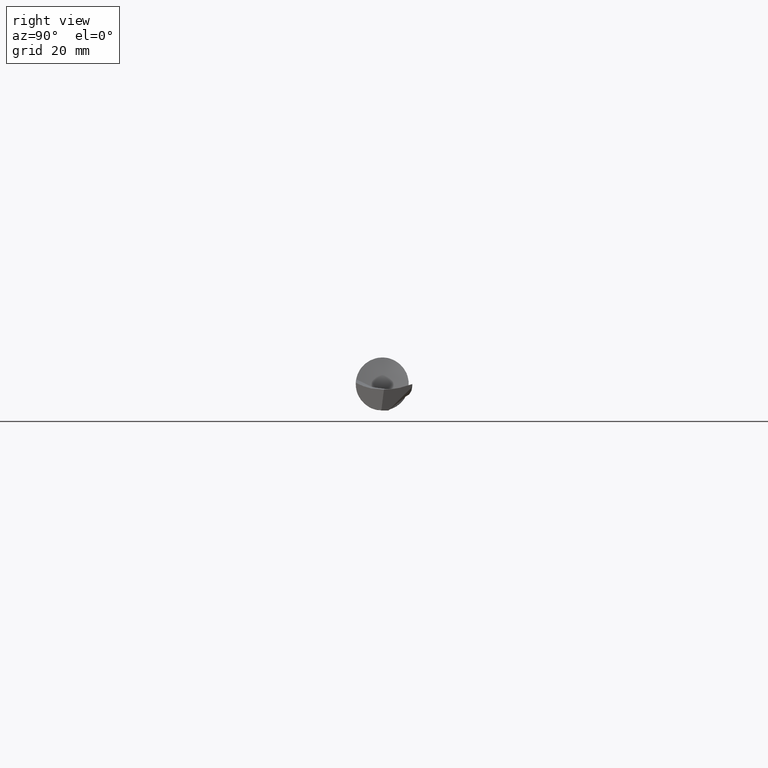
[diagram: clean part render]
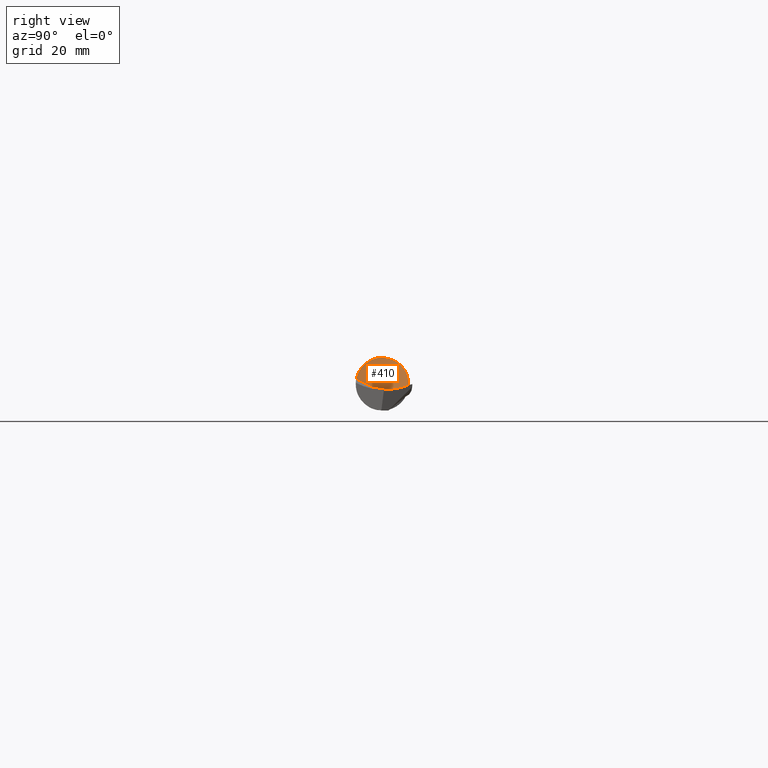
[diagram: same view with one face highlighted and labeled with its STEP entity id]
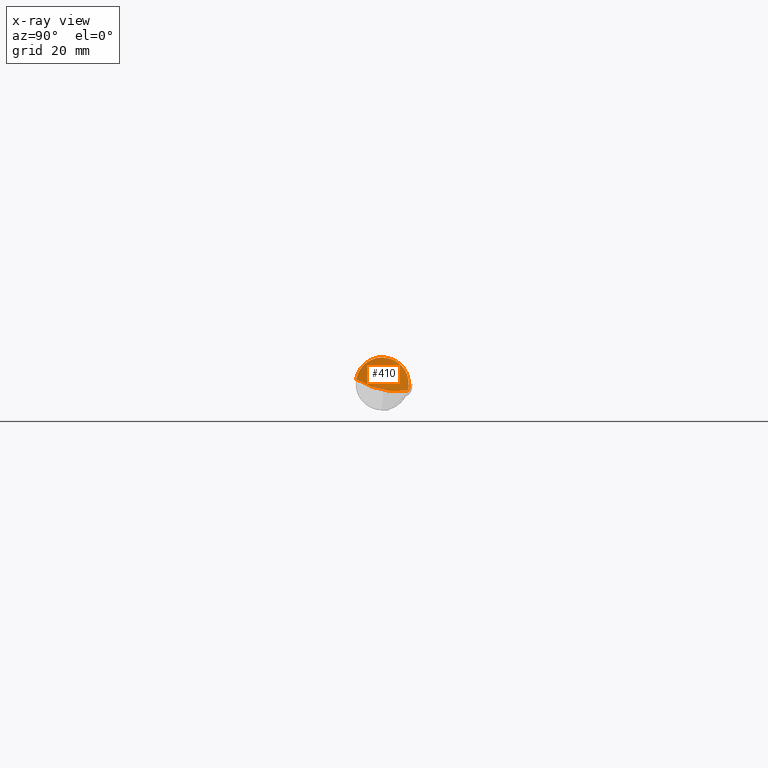
[diagram: x-ray of the same camera — body ghosted, the highlighted face saturated]
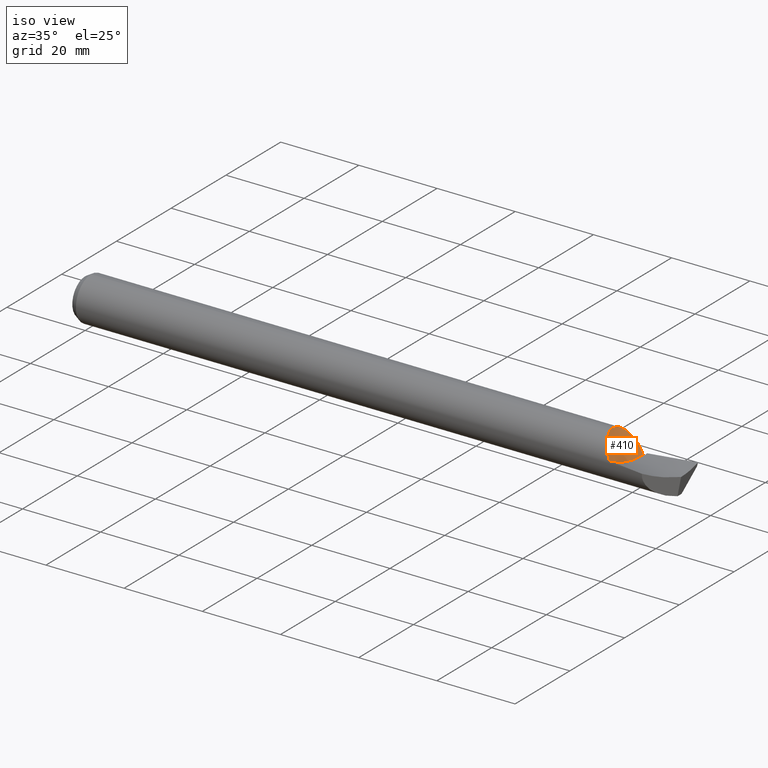
[diagram: same view with one face highlighted and labeled with its STEP entity id]
A machine part, right view. The second image highlights one B-rep face of the part: STEP entity #410.
The next image is the same camera in x-ray: the body ghosted, the highlighted face saturated — about 0% of this face is hidden behind the body in this view.
A second angle (iso view) of the same face is appended — the face is thin or edge-on in the first view.
In plain terms, the highlighted face is a freeform B-spline surface patch.
Its self-contained STEP definition (entity closure, byte-faithful):
#5 = CARTESIAN_POINT ( 'NONE',  ( 5.428289023255820744, -0.2151305318689210322, 0.03907271116514884901 ) ) ;
#6 = CARTESIAN_POINT ( 'NONE',  ( 5.393751563188459386, 0.2097834464265109777, 0.06168193126618237015 ) ) ;
#7 = VERTEX_POINT ( 'NONE', #640 ) ;
#9 = CARTESIAN_POINT ( 'NONE',  ( 5.301726246469367965, -1.097537071317447814E-06, 0.2186592195482874035 ) ) ;
#15 = CARTESIAN_POINT ( 'NONE',  ( 5.301726246469367965, -1.097537071317447814E-06, 0.2186592195482874035 ) ) ;
#19 = FACE_OUTER_BOUND ( 'NONE', #103, .T. ) ;
#26 = CARTESIAN_POINT ( 'NONE',  ( 5.299999999999994493, 0.1070336980627112355, 0.1859076371132536154 ) ) ;
#29 = EDGE_CURVE ( 'NONE', #326, #562, #552, .T. ) ;
#32 = CARTESIAN_POINT ( 'NONE',  ( 5.300000000000003375, -0.004090850421422781262, 0.2091195024837151639 ) ) ;
#39 = CARTESIAN_POINT ( 'NONE',  ( 5.323851703196349483, -0.07692295761513294472, 0.2046733460412991090 ) ) ;
#40 = CARTESIAN_POINT ( 'NONE',  ( 5.391960524979544367, 0.2090039576888267914, 0.06425115845135193071 ) ) ;
#41 = CARTESIAN_POINT ( 'NONE',  ( 5.354642086951858282, -0.1405036324967387229, 0.1675373154708120482 ) ) ;
#44 = CARTESIAN_POINT ( 'NONE',  ( 5.395925378028884722, 0.2106676904138148898, 0.05855338454461178621 ) ) ;
#49 = CARTESIAN_POINT ( 'NONE',  ( 5.373045229115887444, 0.1987798122955278524, 0.09107372125574716981 ) ) ;
#51 = CARTESIAN_POINT ( 'NONE',  ( 5.333018530376169686, -0.09912489433541260553, 0.1953142997923010271 ) ) ;
#53 = CARTESIAN_POINT ( 'NONE',  ( 5.327903301790693824, 0.1544032420682446283, 0.1548144573598769780 ) ) ;
#59 = CARTESIAN_POINT ( 'NONE',  ( 5.410943118938225993, 0.2156394942511996315, 0.03669571857654661123 ) ) ;
#65 = CARTESIAN_POINT ( 'NONE',  ( 5.301571563392669439, 0.0009007926053264448708, 0.2186486067439287750 ) ) ;
#70 = CARTESIAN_POINT ( 'NONE',  ( 5.300000000000000711, 0.01069301138062639031, 0.2183883742501275815 ) ) ;
#79 = CARTESIAN_POINT ( 'NONE',  ( 5.300000000000000711, 0.05917864143259982113, 0.2052125541240582551 ) ) ;
#95 = CARTESIAN_POINT ( 'NONE',  ( 5.317997827412834333, -0.06112191080452025749, 0.2099624141757666929 ) ) ;
#97 = CARTESIAN_POINT ( 'NONE',  ( 5.422981224190761118, 0.2178384048208436286, 0.01882239950287517907 ) ) ;
#101 = CARTESIAN_POINT ( 'NONE',  ( 5.423132256118122108, 0.2178578002910109834, 0.01859591843064410319 ) ) ;
#103 = EDGE_LOOP ( 'NONE', ( #199, #518, #691, #175, #338 ) ) ;
#112 = CARTESIAN_POINT ( 'NONE',  ( 5.339809942963882783, 0.1702993353926174069, 0.1377509704733041185 ) ) ;
#116 = CARTESIAN_POINT ( 'NONE',  ( 5.363905207600467406, 0.1924089063709986391, 0.1039229917590410029 ) ) ;
#120 = CARTESIAN_POINT ( 'NONE',  ( 5.301184492781922053, 0.003146918431384278843, 0.2186305735167796416 ) ) ;
#141 = CARTESIAN_POINT ( 'NONE',  ( 5.300000000000000711, -0.09244828656994326377, 0.2677915732775291713 ) ) ;
#145 = CARTESIAN_POINT ( 'NONE',  ( 5.367185262199287266, -0.1604174294540079426, 0.1490964670851400165 ) ) ;
#150 = CARTESIAN_POINT ( 'NONE',  ( 5.372283168852959534, 0.1982860555661837831, 0.09214581790529133287 ) ) ;
#153 = CARTESIAN_POINT ( 'NONE',  ( 5.353799381708173044, -0.1390748737465828111, 0.1687191142472262428 ) ) ;
#155 = CARTESIAN_POINT ( 'NONE',  ( 5.376457864700658007, 0.2009676489907449570, 0.08627223400866519676 ) ) ;
#159 = CARTESIAN_POINT ( 'NONE',  ( 5.453529265273479254, 0.02632038727175991036, -0.05321014791944884276 ) ) ;
#161 = CARTESIAN_POINT ( 'NONE',  ( 5.315200195965978480, 0.1325952822649145157, 0.1740109497427283214 ) ) ;
#163 = CARTESIAN_POINT ( 'NONE',  ( 5.314552961290850419, -0.05098192065812419405, 0.2127387826740966270 ) ) ;
#169 = CARTESIAN_POINT ( 'NONE',  ( 5.420983759668443369, 0.2175622048859018609, 0.02180692788309914962 ) ) ;
#175 = ORIENTED_EDGE ( 'NONE', *, *, #29, .F. ) ;
#199 = ORIENTED_EDGE ( 'NONE', *, *, #557, .F. ) ;
#208 = CARTESIAN_POINT ( 'NONE',  ( 5.327339098440490694, 0.1535724871066054542, 0.1556396391440466598 ) ) ;
#214 = CARTESIAN_POINT ( 'NONE',  ( 5.373198069281534650, 0.1988781926060893268, 0.09085868690086847110 ) ) ;
#216 = CARTESIAN_POINT ( 'NONE',  ( 5.467775382269694617, 0.1747646242851793319, -0.06124491988081876004 ) ) ;
#218 = CARTESIAN_POINT ( 'NONE',  ( 5.423203999389651031, 0.2178669501258466701, 0.01848827045659682394 ) ) ;
#220 = CARTESIAN_POINT ( 'NONE',  ( 5.383913653070428573, -0.1816157460054630135, 0.1217936843185418311 ) ) ;
#222 = CARTESIAN_POINT ( 'NONE',  ( 5.397033353014940360, 0.2111023645173870367, 0.05695621974847463881 ) ) ;
#224 = CARTESIAN_POINT ( 'NONE',  ( 5.432181049313783205, -0.1841263147728427196, 0.01977626706365450890 ) ) ;
#225 = B_SPLINE_CURVE_WITH_KNOTS ( 'NONE', 3,
 ( #15, #575, #65, #232, #120, #349, #288, #70 ),
 .UNSPECIFIED., .F., .F.,
 ( 4, 2, 1, 1, 4 ),
 ( 0.9685658636575108504, 0.9724951307003227852, 0.9764243977431347199, 0.9842829318287569240, 1.000000000000000000 ),
 .UNSPECIFIED. ) ;
#227 = CARTESIAN_POINT ( 'NONE',  ( 5.417222582560270894, 0.2169486243322618635, 0.02740261093453771543 ) ) ;
#232 = CARTESIAN_POINT ( 'NONE',  ( 5.301415447608443188, 0.001800015976620992272, 0.2186430529444348403 ) ) ;
#238 = CARTESIAN_POINT ( 'NONE',  ( 5.465102704248059773, 0.2138155167977597859, -0.04696383832082493687 ) ) ;
#260 = CARTESIAN_POINT ( 'NONE',  ( 5.464212849416286488, 0.1377136875928074988, -0.06237143978746857026 ) ) ;
#262 = CARTESIAN_POINT ( 'NONE',  ( 5.397994206653936367, 0.2114706548956107601, 0.05556976712593802298 ) ) ;
#266 = CARTESIAN_POINT ( 'NONE',  ( 5.328253007059424284, -0.08813334624505253512, 0.2004187933001320143 ) ) ;
#268 = CARTESIAN_POINT ( 'NONE',  ( 5.397833416469516976, 0.2114095307937702561, 0.05580185651004301167 ) ) ;
#274 = CARTESIAN_POINT ( 'NONE',  ( 5.355166375661937650, 0.1853570673493258048, 0.1161901871610538928 ) ) ;
#276 = CARTESIAN_POINT ( 'NONE',  ( 5.348460418300624575, -0.1297214670295155914, 0.1760449541647363114 ) ) ;
#282 = CARTESIAN_POINT ( 'NONE',  ( 5.471346566983472215, 0.2110442653468279917, -0.05716765312847500030 ) ) ;
#283 = CARTESIAN_POINT ( 'NONE',  ( 5.312534214554918144, 0.1267698187323551273, 0.1782919693017149532 ) ) ;
#288 = CARTESIAN_POINT ( 'NONE',  ( 5.300264159778933504, 0.008933953364436371392, 0.2184745173646364946 ) ) ;
#299 = CARTESIAN_POINT ( 'NONE',  ( 5.300000000000003375, 0.2113664015079515235, 0.2040851448814152980 ) ) ;
#305 = EDGE_CURVE ( 'NONE', #562, #7, #567, .T. ) ;
#317 = VERTEX_POINT ( 'NONE', #9 ) ;
#320 = CARTESIAN_POINT ( 'NONE',  ( 5.405285100613323124, 0.2142245497771485541, 0.04504311766564184083 ) ) ;
#323 = CARTESIAN_POINT ( 'NONE',  ( 5.300000000000000711, 0.08415770461942120861, 0.2018051120591107528 ) ) ;
#326 = VERTEX_POINT ( 'NONE', #404 ) ;
#328 = CARTESIAN_POINT ( 'NONE',  ( 5.301726246469367965, -1.097537071317447814E-06, 0.2186592195482874035 ) ) ;
#329 = CARTESIAN_POINT ( 'NONE',  ( 5.367367877305579960, 0.1949327976827347486, 0.09905738301277887403 ) ) ;
#332 = CARTESIAN_POINT ( 'NONE',  ( 5.323595237030366079, -0.07626520320020291344, 0.2049193257915876698 ) ) ;
#334 = CARTESIAN_POINT ( 'NONE',  ( 5.373302573659572090, 0.1989452789271062005, 0.09071165374625229927 ) ) ;
#336 = CARTESIAN_POINT ( 'NONE',  ( 5.442851900054501257, -0.08240101752907343091, -0.02541948207811101437 ) ) ;
#337 = CARTESIAN_POINT ( 'NONE',  ( 5.380078260122174605, 0.2031193701579339372, 0.08117539300899345722 ) ) ;
#338 = ORIENTED_EDGE ( 'NONE', *, *, #348, .F. ) ;
#348 = EDGE_CURVE ( 'NONE', #317, #326, #225, .T. ) ;
#349 = CARTESIAN_POINT ( 'NONE',  ( 5.300668130135377965, 0.006275985951900001081, 0.2185726620587430669 ) ) ;
#369 = CARTESIAN_POINT ( 'NONE',  ( 5.426495310737730726, -0.2346414111190601171, 0.05162391903025147222 ) ) ;
#370 = CARTESIAN_POINT ( 'NONE',  ( 5.428289023255820744, -0.2151305318689210322, 0.03907271116514884901 ) ) ;
#382 = CARTESIAN_POINT ( 'NONE',  ( 5.353176744031411083, -0.1380131013251689742, 0.1695889247472530670 ) ) ;
#384 = CARTESIAN_POINT ( 'NONE',  ( 5.328047902314448692, 0.1546146149302989881, 0.1546032736966542476 ) ) ;
#386 = CARTESIAN_POINT ( 'NONE',  ( 5.385492893635559497, -0.1833816485035568433, 0.1191191383568872691 ) ) ;
#388 = CARTESIAN_POINT ( 'NONE',  ( 5.386279324233727017, 0.2063497684418835743, 0.07236968066712116954 ) ) ;
#394 = CARTESIAN_POINT ( 'NONE',  ( 5.302117979541469239, 0.09661801112770525279, 0.1966091003016623706 ) ) ;
#397 = CARTESIAN_POINT ( 'NONE',  ( 5.323214188873268249, -0.07528118465658978353, 0.2052819717783619935 ) ) ;
#402 = CARTESIAN_POINT ( 'NONE',  ( 5.421570427800180170, 0.2176470342228367938, 0.02093183762545664656 ) ) ;
#404 = CARTESIAN_POINT ( 'NONE',  ( 5.300000000000000711, 0.01069301138062639031, 0.2183883742501275815 ) ) ;
#410 = ADVANCED_FACE ( 'NONE', ( #19 ), #693, .T. ) ;
#428 = CARTESIAN_POINT ( 'NONE',  ( 5.460175900187040909, 0.08732696902291027519, -0.08174801506127159223 ) ) ;
#431 = CARTESIAN_POINT ( 'NONE',  ( 5.321872108503046483, -0.07177740625180767386, 0.2065433747930592034 ) ) ;
#436 = CARTESIAN_POINT ( 'NONE',  ( 5.350387775362747789, -0.1331895126695880893, 0.1734492682114094908 ) ) ;
#438 = CARTESIAN_POINT ( 'NONE',  ( 5.422648978798818575, 0.2177951105102036988, 0.01932009123605772302 ) ) ;
#441 = CARTESIAN_POINT ( 'NONE',  ( 5.355320374578507625, -0.1416402864811667495, 0.1665775413964856733 ) ) ;
#443 = CARTESIAN_POINT ( 'NONE',  ( 5.433059707276100880, 0.2191156137562941530, 0.003690420362170297904 ) ) ;
#445 = CARTESIAN_POINT ( 'NONE',  ( 5.457089790918026040, 0.06348854570549856968, -0.05835484118810305154 ) ) ;
#448 = CARTESIAN_POINT ( 'NONE',  ( 5.326556738207087527, 0.1524046853324500239, 0.1567870027476325201 ) ) ;
#451 = B_SPLINE_CURVE_WITH_KNOTS ( 'NONE', 3,
 ( #282, #216, #260, #445, #159, #741, #336, #568, #224, #5 ),
 .UNSPECIFIED., .F., .F.,
 ( 4, 2, 2, 2, 4 ),
 ( 0.000000000000000000, 0.2500000000000000000, 0.5000000000000000000, 0.7500000000000000000, 1.000000000000000000 ),
 .UNSPECIFIED. ) ;
#453 = CARTESIAN_POINT ( 'NONE',  ( 5.379225412555443953, -0.1761750767513403093, 0.1296564606168214562 ) ) ;
#455 = CARTESIAN_POINT ( 'NONE',  ( 5.325018574646904312, 0.1500525979030663815, 0.1590538414227918029 ) ) ;
#459 = CARTESIAN_POINT ( 'NONE',  ( 5.418947809790066295, 0.2172440735159769654, 0.02483878854211619969 ) ) ;
#469 = CARTESIAN_POINT ( 'NONE',  ( 5.300000000000000711, 0.01069301138062639031, 0.2183883742501275815 ) ) ;
#481 = CARTESIAN_POINT ( 'NONE',  ( 5.475343214723423557, 0.2546653280443949008, -0.05083193603654914683 ) ) ;
#493 = CARTESIAN_POINT ( 'NONE',  ( 5.423234999096580466, 0.2178708968474347696, 0.01844174950760434431 ) ) ;
#495 = CARTESIAN_POINT ( 'NONE',  ( 5.306805682398024970, -0.02460528017656519670, 0.2176696562880553742 ) ) ;
#498 = CARTESIAN_POINT ( 'NONE',  ( 5.423233938071987836, 0.2178707556036081350, 0.01844333415305287466 ) ) ;
#501 = CARTESIAN_POINT ( 'NONE',  ( 5.341101494872652289, -0.1157947440727595534, 0.1855823246303779095 ) ) ;
#503 = CARTESIAN_POINT ( 'NONE',  ( 5.372816176018894829, 0.1986320615790215238, 0.09139597521367277821 ) ) ;
#507 = CARTESIAN_POINT ( 'NONE',  ( 5.351115144369523513, 0.1816527304700205347, 0.1218706312577485934 ) ) ;
#510 = CARTESIAN_POINT ( 'NONE',  ( 5.404165058258996623, -0.2022209992731618111, 0.08673448802873288954 ) ) ;
#511 = CARTESIAN_POINT ( 'NONE',  ( 5.371222954762587598, 0.1975890853420696203, 0.09363716917474670942 ) ) ;
#518 = ORIENTED_EDGE ( 'NONE', *, *, #606, .F. ) ;
#539 = CARTESIAN_POINT ( 'NONE',  ( 5.428289023255820744, -0.2151305318689210322, 0.03907271116514884901 ) ) ;
#547 = CARTESIAN_POINT ( 'NONE',  ( 5.361462074103652498, -0.1518093568957043782, 0.1578105731485251184 ) ) ;
#549 = CARTESIAN_POINT ( 'NONE',  ( 5.423253717541536290, 0.2178732670025561868, 0.01841364297473846792 ) ) ;
#550 = CARTESIAN_POINT ( 'NONE',  ( 5.416417109839364308, -0.2107593895042234877, 0.06321933073818039595 ) ) ;
#552 = B_SPLINE_CURVE_WITH_KNOTS ( 'NONE', 3,
 ( #469, #702, #79, #646 ),
 .UNSPECIFIED., .F., .F.,
 ( 4, 4 ),
 ( 0.000000000000000000, 1.000000000000000000 ),
 .UNSPECIFIED. ) ;
#553 = CARTESIAN_POINT ( 'NONE',  ( 5.305507494335683916, 0.1089507565844239911, 0.1901071228948381375 ) ) ;
#557 = EDGE_CURVE ( 'NONE', #705, #317, #728, .T. ) ;
#560 = CARTESIAN_POINT ( 'NONE',  ( 5.369125727547873872, 0.1961757832042421712, 0.09658652870678993696 ) ) ;
#562 = VERTEX_POINT ( 'NONE', #323 ) ;
#563 = CARTESIAN_POINT ( 'NONE',  ( 5.319797351407710373, -0.06622082069837728624, 0.2084352783557121835 ) ) ;
#564 = CARTESIAN_POINT ( 'NONE',  ( 5.322048475153072111, 0.1452844629865166215, 0.1634757013975004225 ) ) ;
#567 = B_SPLINE_CURVE_WITH_KNOTS ( 'NONE', 3,
 ( #622, #394, #553, #283, #161, #725, #564, #455, #448, #208, #678, #53, #384, #625, #112, #507, #274, #569, #116, #329, #560, #511, #150, #503, #49, #214, #334, #155, #337, #388, #683, #40, #6, #44, #222, #613, #268, #262, #618, #320, #59, #227, #459, #169, #402, #732, #438, #97, #101, #218, #498, #549, #493, #443, #673, #632, #238, #628 ),
 .UNSPECIFIED., .F., .F.,
 ( 4, 2, 2, 1, 1, 1, 1, 2, 2, 2, 2, 2, 1, 1, 1, 1, 2, 2, 2, 2, 1, 1, 1, 1, 2, 2, 2, 2, 2, 1, 1, 1, 1, 2, 2, 2, 4 ),
 ( 0.000000000000000000, 0.1249999999998774591, 0.1874999999998176736, 0.2187499999997860878, 0.2343749999997719324, 0.2421874999997648825, 0.2460937499997613298, 0.2480468749997613298, 0.2499999999997613020, 0.3749999999997518652, 0.4374999999997471467, 0.4687499999997424838, 0.4843749999997402633, 0.4921874999997412625, 0.4960937499997417621, 0.4980468749997419287, 0.4990234374997400413, 0.4999999999997380984, 0.5624999999993800515, 0.5937499999992035260, 0.6093749999991152633, 0.6171874999990710764, 0.6210937499990469846, 0.6230468749990347721, 0.6240234374990287769, 0.6249999999990226707, 0.6874999999986342036, 0.7187499999984424681, 0.7343749999983466559, 0.7421874999982986942, 0.7460937499982812637, 0.7480468749982726040, 0.7490234374982682741, 0.7495117187482742693, 0.7499999999982802645, 0.8749999999991401323, 1.000000000000000000 ),
 .UNSPECIFIED. ) ;
#568 = CARTESIAN_POINT ( 'NONE',  ( 5.435737264790459378, -0.1511528165519582523, 0.002841545197440638500 ) ) ;
#569 = CARTESIAN_POINT ( 'NONE',  ( 5.361667468836358807, 0.1906757896823386977, 0.1070652166029300717 ) ) ;
#575 = CARTESIAN_POINT ( 'NONE',  ( 5.301661883401521891, 0.0003876334332870394060, 0.2186500005415279169 ) ) ;
#606 = EDGE_CURVE ( 'NONE', #7, #705, #451, .T. ) ;
#607 = CARTESIAN_POINT ( 'NONE',  ( 5.323018997531307583, -0.07477532232089666164, 0.2054669831661162238 ) ) ;
#611 = CARTESIAN_POINT ( 'NONE',  ( 5.388684362219426482, -0.1868110008452356086, 0.1136655096938851833 ) ) ;
#613 = CARTESIAN_POINT ( 'NONE',  ( 5.397592607399428033, 0.2113176932515422324, 0.05614940170787149215 ) ) ;
#616 = CARTESIAN_POINT ( 'NONE',  ( 5.312461959699881220, -0.04429957942379789820, 0.2142190208831991349 ) ) ;
#618 = CARTESIAN_POINT ( 'NONE',  ( 5.398043971051625256, 0.2114895497985064821, 0.05549793209714443121 ) ) ;
#620 = CARTESIAN_POINT ( 'NONE',  ( 5.343951596291702799, -0.1213797972024721339, 0.1819929034652232880 ) ) ;
#622 = CARTESIAN_POINT ( 'NONE',  ( 5.300000000000000711, 0.08415770461942120861, 0.2018051120591107528 ) ) ;
#624 = CARTESIAN_POINT ( 'NONE',  ( 5.322690167765286695, -0.07391856379628214402, 0.2057767623563798165 ) ) ;
#625 = CARTESIAN_POINT ( 'NONE',  ( 5.333404465322259647, 0.1624201294929293327, 0.1467850412336485499 ) ) ;
#628 = CARTESIAN_POINT ( 'NONE',  ( 5.471346566983472215, 0.2110442653468279917, -0.05716765312847500030 ) ) ;
#632 = CARTESIAN_POINT ( 'NONE',  ( 5.457979820255085990, 0.2161354240335456312, -0.03543154529881645948 ) ) ;
#640 = CARTESIAN_POINT ( 'NONE',  ( 5.471346566983472215, 0.2110442653468279917, -0.05716765312847500030 ) ) ;
#646 = CARTESIAN_POINT ( 'NONE',  ( 5.300000000000000711, 0.08415770461942120861, 0.2018051120591107528 ) ) ;
#666 = CARTESIAN_POINT ( 'NONE',  ( 5.353579253872610799, -0.1387005322206082691, 0.1690271631899464277 ) ) ;
#670 = CARTESIAN_POINT ( 'NONE',  ( 5.303857134158199038, -0.01195368764396109035, 0.2186499833073598797 ) ) ;
#673 = CARTESIAN_POINT ( 'NONE',  ( 5.441958321769108764, 0.2187870391100778522, -0.01010680176257232506 ) ) ;
#676 = CARTESIAN_POINT ( 'NONE',  ( 5.390320083459168465, -0.1884932922161005608, 0.1108494801515019640 ) ) ;
#678 = CARTESIAN_POINT ( 'NONE',  ( 5.327677241066231417, 0.1540711808845482145, 0.1551449276955547962 ) ) ;
#683 = CARTESIAN_POINT ( 'NONE',  ( 5.388474757434125628, 0.2074262837235434642, 0.06924111559163767526 ) ) ;
#686 = CARTESIAN_POINT ( 'NONE',  ( 5.376165893785994854, -0.1723573828809910058, 0.1346836162415121219 ) ) ;
#691 = ORIENTED_EDGE ( 'NONE', *, *, #305, .F. ) ;
#693 = B_SPLINE_SURFACE_WITH_KNOTS ( 'NONE', 1, 3, ( 
 ( #141, #32, #26, #299 ),
 ( #369, #706, #428, #481 ) ),
 .UNSPECIFIED., .F., .F., .F.,
 ( 2, 2 ),
 ( 4, 4 ),
 ( 0.000000000000000000, 1.000000000000000000 ),
 ( 0.01502822708822832733, 0.02313864552102455618 ),
 .UNSPECIFIED. ) ;
#702 = CARTESIAN_POINT ( 'NONE',  ( 5.300000000000000711, 0.03468547719500442855, 0.2107352011881281073 ) ) ;
#705 = VERTEX_POINT ( 'NONE', #370 ) ;
#706 = CARTESIAN_POINT ( 'NONE',  ( 5.441971794761842673, -0.09345213243011203652, -0.04411038998481188467 ) ) ;
#722 = CARTESIAN_POINT ( 'NONE',  ( 5.352574804815553478, -0.1369811847766369828, 0.1704269595549098015 ) ) ;
#725 = CARTESIAN_POINT ( 'NONE',  ( 5.319684780089543708, 0.1410945944728179691, 0.1670733735903800476 ) ) ;
#728 = B_SPLINE_CURVE_WITH_KNOTS ( 'NONE', 3,
 ( #539, #550, #510, #676, #611, #386, #220, #453, #686, #145, #547, #441, #41, #153, #666, #382, #722, #436, #276, #620, #501, #51, #266, #39, #332, #397, #607, #624, #431, #563, #95, #163, #616, #495, #670, #328 ),
 .UNSPECIFIED., .F., .F.,
 ( 4, 2, 2, 2, 2, 2, 2, 2, 1, 1, 2, 2, 2, 2, 2, 1, 1, 2, 2, 4 ),
 ( 0.000000000000000000, 0.2421414659143002468, 0.2724091491535899356, 0.3026768323928796245, 0.3632121988714589467, 0.4842829318286177021, 0.4994167734482627408, 0.5032002338531760266, 0.5069836942580893124, 0.5145506150679159951, 0.5448182983072229479, 0.6053536647858370756, 0.7264243977430649979, 0.7339913185528926798, 0.7377747789578066318, 0.7415582393627203617, 0.7566920809823723948, 0.7869597642216793476, 0.8474951307002906997, 0.9685658636575108504 ),
 .UNSPECIFIED. ) ;
#732 = CARTESIAN_POINT ( 'NONE',  ( 5.422312457256199814, 0.2177498473727765560, 0.01982332407106036226 ) ) ;
#741 = CARTESIAN_POINT ( 'NONE',  ( 5.446410319841564984, -0.04662749994845894613, -0.03674176704074286204 ) ) ;